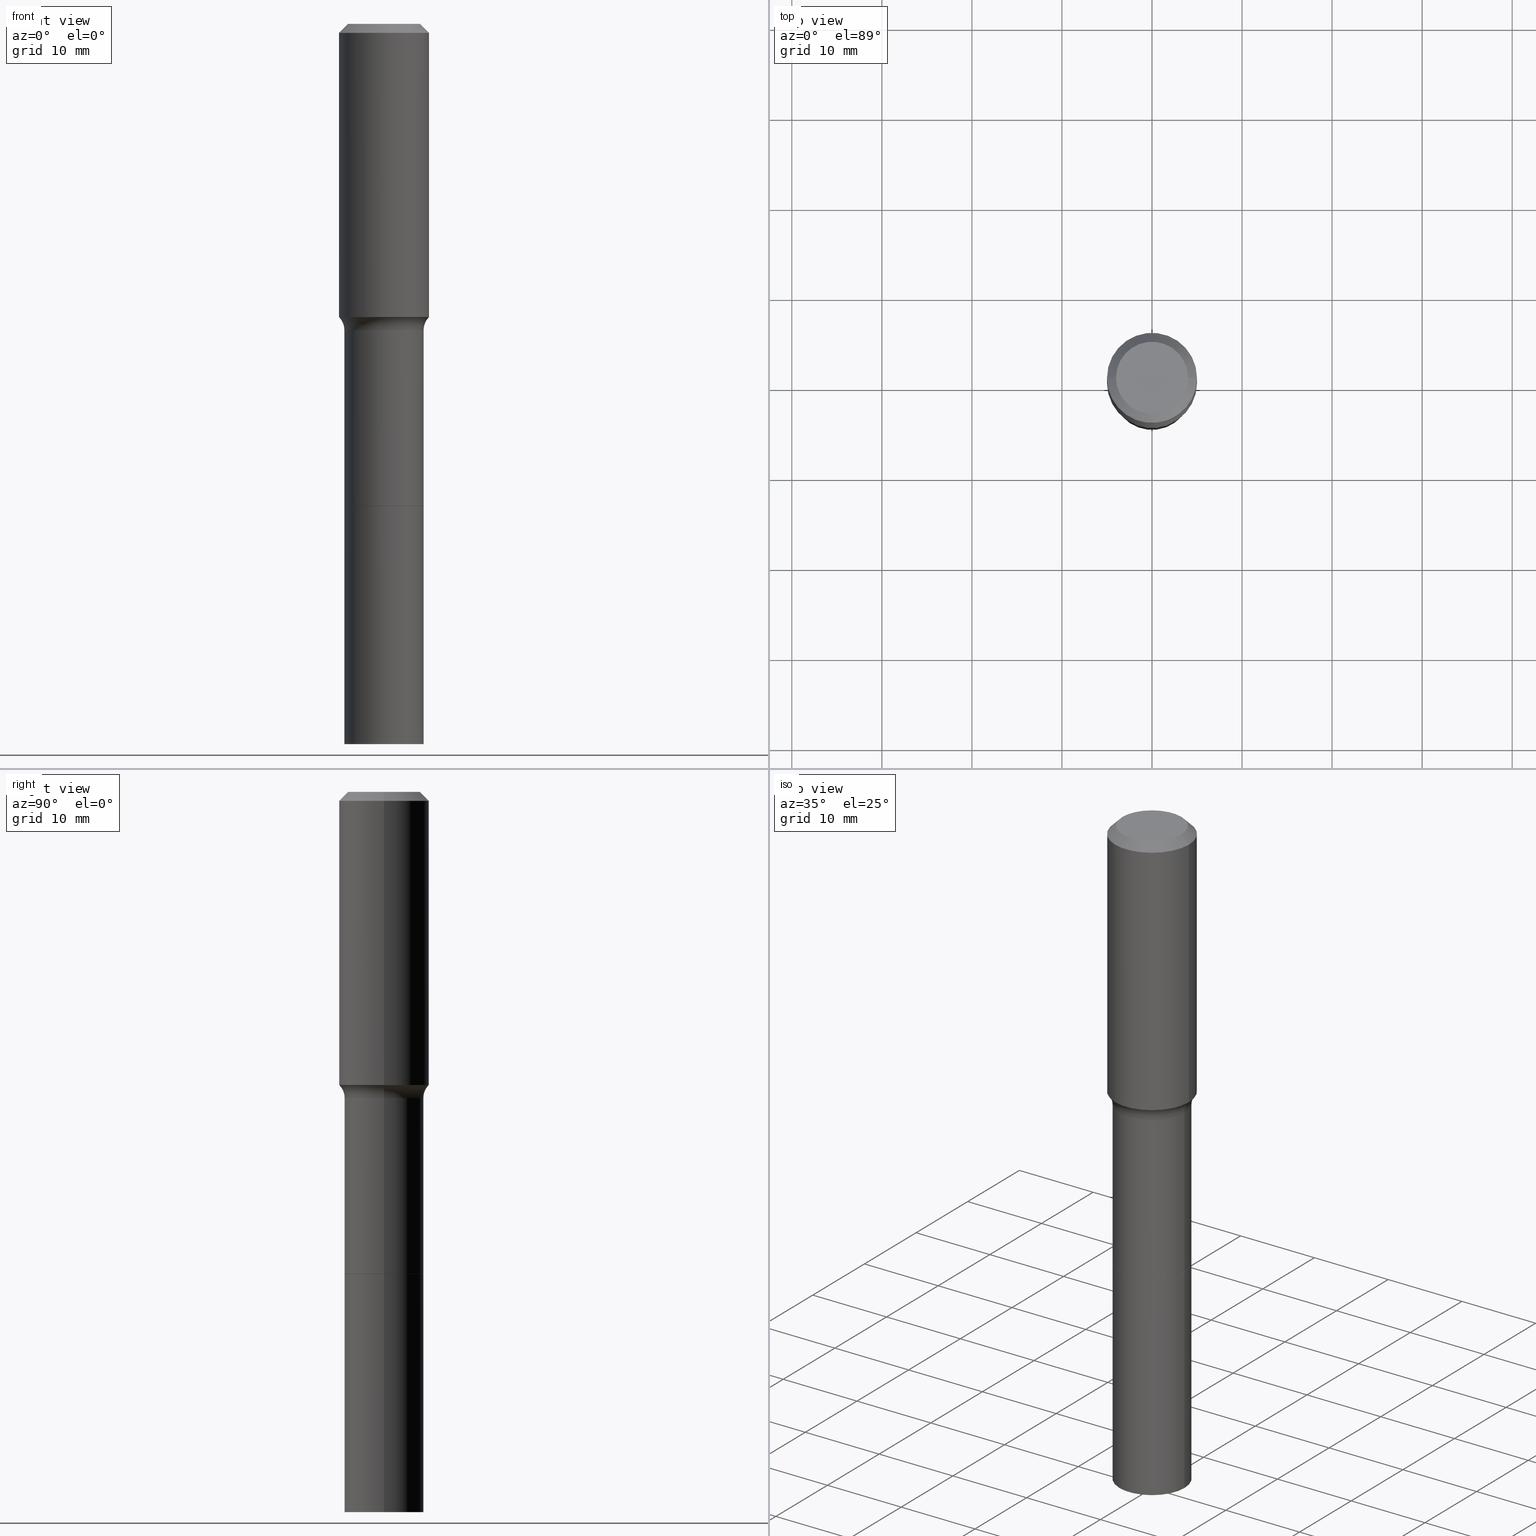
[diagram: canonical four-view strip — front | top / right | iso, engineering-drawing reading convention]
A machine part, canonical four-view strip (front | top / right | iso — engineering-drawing reading convention). The complete STEP part file that produces these views, byte-faithful:
ISO-10303-21;
HEADER;
FILE_DESCRIPTION (( 'STEP AP203' ),
    '1' );
FILE_NAME ('67765.STEP',
    '2025-04-01T15:30:23',
    ( '' ),
    ( '' ),
    'SwSTEP 2.0',
    'SolidWorks 2024',
    '' );
FILE_SCHEMA (( 'CONFIG_CONTROL_DESIGN' ));
ENDSEC;

DATA;
#1 = AXIS2_PLACEMENT_3D ( 'NONE', #448, #405, #164 ) ;
#2 = EDGE_LOOP ( 'NONE', ( #35, #314, #259, #279 ) ) ;
#3 = CARTESIAN_POINT ( 'NONE',  ( 7.702248551960706711E-29, -1.099676962482037231E-14, -3.149600000000000399 ) ) ;
#4 = PRODUCT_DEFINITION ( 'UNKNOWN', '', #490, #422 ) ;
#5 = EDGE_LOOP ( 'NONE', ( #225, #436, #476, #50 ) ) ;
#6 = EDGE_CURVE ( 'NONE', #451, #30, #44, .T. ) ;
#7 = LINE ( 'NONE', #236, #80 ) ;
#8 = AXIS2_PLACEMENT_3D ( 'NONE', #374, #435, #468 ) ;
#9 = ORIENTED_EDGE ( 'NONE', *, *, #290, .F. ) ;
#10 = SECURITY_CLASSIFICATION_LEVEL ( 'unclassified' ) ;
#11 = DIRECTION ( 'NONE',  ( -2.445468806185136597E-29, 3.491481338843145583E-15, 1.000000000000000000 ) ) ;
#12 = DIRECTION ( 'NONE',  ( 1.000000000000000000, -6.982962677686265922E-15, 4.876223630392693006E-29 ) ) ;
#13 = VERTEX_POINT ( 'NONE', #356 ) ;
#14 = CARTESIAN_POINT ( 'NONE',  ( 9.627810689950955906E-31, -1.374596203102556794E-16, -0.03937000000000030059 ) ) ;
#15 = CIRCLE ( 'NONE', #493, 0.1727499999999999869 ) ;
#16 = EDGE_CURVE ( 'NONE', #68, #13, #248, .T. ) ;
#17 = FACE_OUTER_BOUND ( 'NONE', #469, .T. ) ;
#18 = DIRECTION ( 'NONE',  ( -2.445468806185136597E-29, 3.491481338843145583E-15, 1.000000000000000000 ) ) ;
#19 = LINE ( 'NONE', #334, #466 ) ;
#20 = SECURITY_CLASSIFICATION ( '', '', #10 ) ;
#21 = EDGE_CURVE ( 'NONE', #439, #30, #270, .T. ) ;
#22 = CARTESIAN_POINT ( 'NONE',  ( 9.627810689950955906E-31, -1.374596203102556794E-16, -0.03937000000000030059 ) ) ;
#23 = CARTESIAN_POINT ( 'NONE',  ( 3.134551197709125186E-29, -4.475308368182595464E-15, -1.281779260394221964 ) ) ;
#24 = EDGE_LOOP ( 'NONE', ( #9, #276, #269, #117 ) ) ;
#25 = CONICAL_SURFACE ( 'NONE', #311, 0.1727499999999999869, 0.7853981633977896726 ) ;
#26 = PERSON_AND_ORGANIZATION ( #338, #99 ) ;
#27 = DIRECTION ( 'NONE',  ( 1.000000000000000000, -6.982962677686265133E-15, 0.000000000000000000 ) ) ;
#28 = ADVANCED_FACE ( 'NONE', ( #79 ), #407, .T. ) ;
#29 = CARTESIAN_POINT ( 'NONE',  ( 0.1574800000000000089, -1.284169937930321386E-15, 3.855188123724205385E-18 ) ) ;
#30 = VERTEX_POINT ( 'NONE', #361 ) ;
#31 = DIRECTION ( 'NONE',  ( -2.445468806185136597E-29, 3.491481338843145583E-15, 1.000000000000000000 ) ) ;
#32 = ORIENTED_EDGE ( 'NONE', *, *, #40, .F. ) ;
#33 = CALENDAR_DATE ( 2025, 1, 4 ) ;
#34 = CARTESIAN_POINT ( 'NONE',  ( 3.140080086727243582E-29, -4.483202156393049043E-15, -1.284040131195000489 ) ) ;
#35 = ORIENTED_EDGE ( 'NONE', *, *, #257, .T. ) ;
#36 = APPLICATION_CONTEXT ( 'configuration controlled 3d designs of mechanical parts and assemblies' ) ;
#37 = ADVANCED_FACE ( 'NONE', ( #446 ), #125, .T. ) ;
#38 = DIRECTION ( 'NONE',  ( -2.445468806185136597E-29, 3.491481338843145583E-15, 1.000000000000000000 ) ) ;
#39 = ORIENTED_EDGE ( 'NONE', *, *, #126, .F. ) ;
#40 = EDGE_CURVE ( 'NONE', #220, #228, #175, .T. ) ;
#41 = ORIENTED_EDGE ( 'NONE', *, *, #271, .T. ) ;
#42 = CALENDAR_DATE ( 2025, 1, 4 ) ;
#43 = ADVANCED_BREP_SHAPE_REPRESENTATION ( '67765', ( #66, #232, #306 ), #189 ) ;
#44 = CIRCLE ( 'NONE', #323, 0.1968500000000000527 ) ;
#45 = CONICAL_SURFACE ( 'NONE', #452, 0.1947417038704662429, 0.7504915783575177857 ) ;
#46 = EDGE_LOOP ( 'NONE', ( #390, #426, #222, #395 ) ) ;
#47 = CARTESIAN_POINT ( 'NONE',  ( -0.1968500000000000527, 1.237136582792286422E-15, -0.03937000000000030059 ) ) ;
#48 = CARTESIAN_POINT ( 'NONE',  ( -0.1732500000000001816, -7.944946816909296255E-15, -3.149600000000000399 ) ) ;
#49 = AXIS2_PLACEMENT_3D ( 'NONE', #14, #286, #58 ) ;
#50 = ORIENTED_EDGE ( 'NONE', *, *, #187, .F. ) ;
#51 = EDGE_CURVE ( 'NONE', #77, #307, #85, .T. ) ;
#52 = ORIENTED_EDGE ( 'NONE', *, *, #375, .F. ) ;
#53 = DIRECTION ( 'NONE',  ( 1.000000000000000000, -6.982962677686269866E-15, 0.000000000000000000 ) ) ;
#54 = CYLINDRICAL_SURFACE ( 'NONE', #408, 0.1732499999999999318 ) ;
#55 = DIRECTION ( 'NONE',  ( -2.445468806185136597E-29, 3.491481338843145583E-15, 1.000000000000000000 ) ) ;
#56 = AXIS2_PLACEMENT_3D ( 'NONE', #142, #224, #480 ) ;
#57 = FACE_OUTER_BOUND ( 'NONE', #472, .T. ) ;
#58 = DIRECTION ( 'NONE',  ( 1.000000000000000000, -6.982962677686266711E-15, 0.000000000000000000 ) ) ;
#59 = APPLICATION_CONTEXT ( 'configuration controlled 3d designs of mechanical parts and assemblies' ) ;
#60 = FACE_OUTER_BOUND ( 'NONE', #24, .T. ) ;
#61 = DIRECTION ( 'NONE',  ( 1.000000000000000000, -6.982962677686265922E-15, 4.876176775795935793E-29 ) ) ;
#62 = CARTESIAN_POINT ( 'NONE',  ( 0.1732500000000001816, -1.220656790872951925E-14, -3.149600000000000399 ) ) ;
#63 = AXIS2_PLACEMENT_3D ( 'NONE', #328, #414, #368 ) ;
#64 = AXIS2_PLACEMENT_3D ( 'NONE', #67, #38, #105 ) ;
#65 = DIRECTION ( 'NONE',  ( 1.000000000000000000, 0.000000000000000000, 0.000000000000000000 ) ) ;
#66 = MANIFOLD_SOLID_BREP ( 'Body-Move/Copy2[1]', #201 ) ;
#67 = CARTESIAN_POINT ( 'NONE',  ( 0.000000000000000000, 0.000000000000000000, 0.000000000000000000 ) ) ;
#68 = VERTEX_POINT ( 'NONE', #81 ) ;
#69 = LINE ( 'NONE', #430, #467 ) ;
#70 = VERTEX_POINT ( 'NONE', #237 ) ;
#71 = CARTESIAN_POINT ( 'NONE',  ( -0.1968500000000001915, -3.076604992838836493E-15, -1.281779260394221964 ) ) ;
#72 = ORIENTED_EDGE ( 'NONE', *, *, #103, .F. ) ;
#73 = CARTESIAN_POINT ( 'NONE',  ( 0.1947417038704662429, -5.843076206309545560E-15, -1.284040131195000489 ) ) ;
#74 = ORIENTED_EDGE ( 'NONE', *, *, #459, .T. ) ;
#75 = APPROVAL_STATUS ( 'not_yet_approved' ) ;
#76 = DIRECTION ( 'NONE',  ( 1.000000000000000000, -6.982962677686266711E-15, 4.883557194083112340E-29 ) ) ;
#77 = VERTEX_POINT ( 'NONE', #48 ) ;
#78 = PERSON_AND_ORGANIZATION ( #338, #99 ) ;
#79 = FACE_OUTER_BOUND ( 'NONE', #2, .T. ) ;
#80 = VECTOR ( 'NONE', #317, 39.37007874015748143 ) ;
#81 = CARTESIAN_POINT ( 'NONE',  ( -0.1947417038704662429, -3.099479126046004502E-15, -1.284040131195000489 ) ) ;
#82 = ADVANCED_FACE ( 'NONE', ( #277 ), #379, .T. ) ;
#83 = APPROVAL_DATE_TIME ( #518, #285 ) ;
#84 = DIRECTION ( 'NONE',  ( 1.000000000000000000, -6.982962677686266711E-15, 0.000000000000000000 ) ) ;
#85 = LINE ( 'NONE', #238, #478 ) ;
#86 = SHAPE_DEFINITION_REPRESENTATION ( #319, #43 ) ;
#87 = CC_DESIGN_APPROVAL ( #263, ( #490 ) ) ;
#88 = EDGE_LOOP ( 'NONE', ( #313, #340 ) ) ;
#89 = EDGE_LOOP ( 'NONE', ( #180, #101, #506, #489 ) ) ;
#90 = PLANE ( 'NONE',  #154 ) ;
#91 = CARTESIAN_POINT ( 'NONE',  ( -0.1574800000000000089, 1.168406772637159815E-15, 3.855188123707939751E-18 ) ) ;
#92 = DIRECTION ( 'NONE',  ( 1.000000000000000000, -6.982962677686266711E-15, 0.000000000000000000 ) ) ;
#93 = EDGE_CURVE ( 'NONE', #77, #149, #281, .T. ) ;
#94 = DIRECTION ( 'NONE',  ( 1.000000000000000000, -6.982962677686266711E-15, 0.000000000000000000 ) ) ;
#95 = DIRECTION ( 'NONE',  ( -2.445468806185136877E-29, 3.491481338843145188E-15, 1.000000000000000000 ) ) ;
#96 = ADVANCED_FACE ( 'NONE', ( #292 ), #136, .T. ) ;
#97 = DIRECTION ( 'NONE',  ( -2.445468806185136597E-29, 3.491481338843145583E-15, 1.000000000000000000 ) ) ;
#98 = LINE ( 'NONE', #330, #316 ) ;
#99 = ORGANIZATION ( 'UNSPECIFIED', 'UNSPECIFIED', '' ) ;
#100 = CARTESIAN_POINT ( 'NONE',  ( -0.1727499999999999869, -6.125042785207288310E-15, -2.106600000000000250 ) ) ;
#101 = ORIENTED_EDGE ( 'NONE', *, *, #399, .F. ) ;
#102 = AXIS2_PLACEMENT_3D ( 'NONE', #3, #159, #119 ) ;
#103 = EDGE_CURVE ( 'NONE', #68, #205, #19, .T. ) ;
#104 = CIRCLE ( 'NONE', #120, 0.1732499999999999596 ) ;
#105 = DIRECTION ( 'NONE',  ( 1.000000000000000000, -6.982962677686267499E-15, 4.876176775795935793E-29 ) ) ;
#106 = CC_DESIGN_DATE_AND_TIME_ASSIGNMENT ( #514, #423, ( #4 ) ) ;
#107 = ORIENTED_EDGE ( 'NONE', *, *, #241, .T. ) ;
#108 = DIRECTION ( 'NONE',  ( -2.445468806185136597E-29, 3.491481338843145583E-15, 1.000000000000000000 ) ) ;
#109 = EDGE_LOOP ( 'NONE', ( #199, #336, #194, #115 ) ) ;
#110 = PERSON_AND_ORGANIZATION ( #338, #99 ) ;
#111 = CARTESIAN_POINT ( 'NONE',  ( -0.1732499999999999873, -7.944946816909297833E-15, -2.106600000000000250 ) ) ;
#112 = EDGE_LOOP ( 'NONE', ( #347, #127, #383, #156 ) ) ;
#113 = TOROIDAL_SURFACE ( 'NONE', #398, 0.2532499999999998641, 0.07999999999999994615 ) ;
#114 = DIRECTION ( 'NONE',  ( -2.445468806185136597E-29, 3.491481338843145583E-15, 1.000000000000000000 ) ) ;
#115 = ORIENTED_EDGE ( 'NONE', *, *, #481, .T. ) ;
#116 = ADVANCED_FACE ( 'NONE', ( #172 ), #54, .T. ) ;
#117 = ORIENTED_EDGE ( 'NONE', *, *, #21, .F. ) ;
#118 = EDGE_CURVE ( 'NONE', #205, #30, #502, .T. ) ;
#119 = DIRECTION ( 'NONE',  ( -1.000000000000000000, 6.982962677686265922E-15, -4.876176775795935793E-29 ) ) ;
#120 = AXIS2_PLACEMENT_3D ( 'NONE', #305, #296, #475 ) ;
#121 = VECTOR ( 'NONE', #210, 39.37007874015748143 ) ;
#122 = CARTESIAN_POINT ( 'NONE',  ( 0.2532499999999998641, -6.442132218299481750E-15, -1.338600000000000234 ) ) ;
#123 = COORDINATED_UNIVERSAL_TIME_OFFSET ( 5, 0, .BEHIND. ) ;
#124 = EDGE_CURVE ( 'NONE', #149, #77, #169, .T. ) ;
#125 = PLANE ( 'NONE',  #102 ) ;
#126 = EDGE_CURVE ( 'NONE', #205, #410, #129, .T. ) ;
#127 = ORIENTED_EDGE ( 'NONE', *, *, #375, .T. ) ;
#128 = CARTESIAN_POINT ( 'NONE',  ( 0.1968500000000000527, -1.512055823412797583E-15, -0.03937000000000030059 ) ) ;
#129 = CIRCLE ( 'NONE', #424, 0.1968500000000001915 ) ;
#130 = DIRECTION ( 'NONE',  ( -2.445468806185136597E-29, 3.491481338843145583E-15, 1.000000000000000000 ) ) ;
#131 = CARTESIAN_POINT ( 'NONE',  ( 0.1727499999999999869, -8.561461390977273068E-15, -2.106600000000000250 ) ) ;
#132 = DIRECTION ( 'NONE',  ( -2.445468806185136877E-29, 3.491481338843145188E-15, 1.000000000000000000 ) ) ;
#133 = DIRECTION ( 'NONE',  ( 1.000000000000000000, -6.982962677686267499E-15, 4.876176775795935793E-29 ) ) ;
#134 = CIRCLE ( 'NONE', #202, 0.1727499999999999869 ) ;
#135 = EDGE_CURVE ( 'NONE', #242, #451, #456, .T. ) ;
#136 = CYLINDRICAL_SURFACE ( 'NONE', #370, 0.1968500000000001082 ) ;
#137 = DATE_AND_TIME ( #215, #404 ) ;
#138 = EDGE_CURVE ( 'NONE', #191, #13, #98, .T. ) ;
#139 = CARTESIAN_POINT ( 'NONE',  ( 3.273504543959424474E-29, -4.673696920175435525E-15, -1.338600000000000234 ) ) ;
#140 = CC_DESIGN_APPROVAL ( #285, ( #20 ) ) ;
#141 = DATE_AND_TIME ( #33, #287 ) ;
#142 = CARTESIAN_POINT ( 'NONE',  ( 5.151624587109609366E-29, -7.355154588406972292E-15, -2.106600000000000250 ) ) ;
#143 = ORIENTED_EDGE ( 'NONE', *, *, #481, .F. ) ;
#144 = CIRCLE ( 'NONE', #501, 0.1732499999999999873 ) ;
#145 = DIRECTION ( 'NONE',  ( 1.000000000000000000, -6.982962677686265133E-15, 0.000000000000000000 ) ) ;
#146 = ORIENTED_EDGE ( 'NONE', *, *, #197, .T. ) ;
#147 = CARTESIAN_POINT ( 'NONE',  ( 0.000000000000000000, 0.000000000000000000, 0.000000000000000000 ) ) ;
#148 = DIRECTION ( 'NONE',  ( -1.000000000000000000, 6.982962677686265922E-15, -4.876176775795935793E-29 ) ) ;
#149 = VERTEX_POINT ( 'NONE', #62 ) ;
#150 = FACE_OUTER_BOUND ( 'NONE', #160, .T. ) ;
#151 = ORIENTED_EDGE ( 'NONE', *, *, #399, .T. ) ;
#152 = CC_DESIGN_PERSON_AND_ORGANIZATION_ASSIGNMENT ( #78, #231, ( #490 ) ) ;
#153 = AXIS2_PLACEMENT_3D ( 'NONE', #449, #406, #365 ) ;
#154 = AXIS2_PLACEMENT_3D ( 'NONE', #413, #250, #61 ) ;
#155 = EDGE_CURVE ( 'NONE', #410, #205, #177, .T. ) ;
#156 = ORIENTED_EDGE ( 'NONE', *, *, #411, .F. ) ;
#157 = PERSON_AND_ORGANIZATION ( #338, #99 ) ;
#158 = DIRECTION ( 'NONE',  ( -2.445468806185136597E-29, 3.491481338843145583E-15, 1.000000000000000000 ) ) ;
#159 = DIRECTION ( 'NONE',  ( 2.438088387897960049E-29, -3.491481338843145188E-15, -1.000000000000000000 ) ) ;
#160 = EDGE_LOOP ( 'NONE', ( #151, #344 ) ) ;
#161 = CONICAL_SURFACE ( 'NONE', #1, 0.1968500000000000527, 0.7853981633974450594 ) ;
#162 = ORIENTED_EDGE ( 'NONE', *, *, #378, .T. ) ;
#163 = DATE_TIME_ROLE ( 'classification_date' ) ;
#164 = DIRECTION ( 'NONE',  ( -1.000000000000000000, 6.982962677686266711E-15, 0.000000000000000000 ) ) ;
#165 = ORIENTED_EDGE ( 'NONE', *, *, #155, .T. ) ;
#166 = DIRECTION ( 'NONE',  ( 1.000000000000000000, -6.982962677686266711E-15, 4.876176775795935793E-29 ) ) ;
#167 = FACE_OUTER_BOUND ( 'NONE', #109, .T. ) ;
#168 = CARTESIAN_POINT ( 'NONE',  ( 0.1732500000000000984, -8.564952872316117653E-15, -2.106600000000000250 ) ) ;
#169 = CIRCLE ( 'NONE', #324, 0.1732500000000001816 ) ;
#170 = DIRECTION ( 'NONE',  ( 1.000000000000000000, -6.982962677686266711E-15, 4.883557194083112340E-29 ) ) ;
#171 = CYLINDRICAL_SURFACE ( 'NONE', #380, 0.1732500000000000984 ) ;
#172 = FACE_OUTER_BOUND ( 'NONE', #350, .T. ) ;
#173 = ADVANCED_FACE ( 'NONE', ( #246 ), #288, .T. ) ;
#174 = ADVANCED_FACE ( 'NONE', ( #167 ), #444, .F. ) ;
#175 = CIRCLE ( 'NONE', #396, 0.07999999999999993228 ) ;
#176 = DIRECTION ( 'NONE',  ( -2.445468806185136597E-29, 3.491481338843145583E-15, 1.000000000000000000 ) ) ;
#177 = CIRCLE ( 'NONE', #267, 0.1968500000000001915 ) ;
#178 = ADVANCED_FACE ( 'NONE', ( #500 ), #90, .F. ) ;
#179 = LINE ( 'NONE', #505, #188 ) ;
#180 = ORIENTED_EDGE ( 'NONE', *, *, #135, .F. ) ;
#181 = APPLICATION_PROTOCOL_DEFINITION ( 'international standard', 'config_control_design', 1994, #59 ) ;
#182 = FACE_OUTER_BOUND ( 'NONE', #431, .T. ) ;
#183 = VERTEX_POINT ( 'NONE', #206 ) ;
#184 = EDGE_CURVE ( 'NONE', #30, #451, #239, .T. ) ;
#185 = DIRECTION ( 'NONE',  ( 1.000000000000000000, -6.982962677686267499E-15, 0.000000000000000000 ) ) ;
#186 = ORIENTED_EDGE ( 'NONE', *, *, #184, .F. ) ;
#187 = EDGE_CURVE ( 'NONE', #183, #510, #495, .T. ) ;
#188 = VECTOR ( 'NONE', #337, 39.37007874015748143 ) ;
#189 =( GEOMETRIC_REPRESENTATION_CONTEXT ( 3 ) GLOBAL_UNCERTAINTY_ASSIGNED_CONTEXT ( ( #289 ) ) GLOBAL_UNIT_ASSIGNED_CONTEXT ( ( #245, #499, #458 ) ) REPRESENTATION_CONTEXT ( 'NONE', 'WORKASPACE' ) );
#190 = CARTESIAN_POINT ( 'NONE',  ( -9.427742298522567634E-47, 1.346031739168368355E-32, 3.855188123715870730E-18 ) ) ;
#191 = VERTEX_POINT ( 'NONE', #372 ) ;
#192 = DIRECTION ( 'NONE',  ( 1.000000000000000000, -6.982962677686269866E-15, 0.000000000000000000 ) ) ;
#193 = ADVANCED_FACE ( 'NONE', ( #17 ), #171, .T. ) ;
#194 = ORIENTED_EDGE ( 'NONE', *, *, #40, .T. ) ;
#195 = ORIENTED_EDGE ( 'NONE', *, *, #118, .F. ) ;
#196 = CIRCLE ( 'NONE', #255, 0.1947417038704662429 ) ;
#197 = EDGE_CURVE ( 'NONE', #68, #220, #507, .T. ) ;
#198 = ORIENTED_EDGE ( 'NONE', *, *, #118, .T. ) ;
#199 = ORIENTED_EDGE ( 'NONE', *, *, #16, .F. ) ;
#200 = ORIENTED_EDGE ( 'NONE', *, *, #360, .T. ) ;
#201 = CLOSED_SHELL ( 'NONE', ( #193, #37, #173, #280 ) ) ;
#202 = AXIS2_PLACEMENT_3D ( 'NONE', #385, #108, #308 ) ;
#203 = CARTESIAN_POINT ( 'NONE',  ( -9.427742298522567634E-47, 1.346031739168368355E-32, 3.855188123715870730E-18 ) ) ;
#204 = DIRECTION ( 'NONE',  ( 1.000000000000000000, -6.982962677686265133E-15, 0.000000000000000000 ) ) ;
#205 = VERTEX_POINT ( 'NONE', #71 ) ;
#206 = CARTESIAN_POINT ( 'NONE',  ( 0.1727499999999999869, -8.561461390977273068E-15, -2.106600000000000250 ) ) ;
#207 = VECTOR ( 'NONE', #95, 39.37007874015748143 ) ;
#208 = CIRCLE ( 'NONE', #249, 0.1732499999999998763 ) ;
#209 = CARTESIAN_POINT ( 'NONE',  ( 3.273504543959424474E-29, -4.673696920175435525E-15, -1.338600000000000234 ) ) ;
#210 = DIRECTION ( 'NONE',  ( -2.445468806185136877E-29, 3.491481338843145188E-15, 1.000000000000000000 ) ) ;
#211 = DIRECTION ( 'NONE',  ( -2.445468806185136597E-29, 3.491481338843145583E-15, 1.000000000000000000 ) ) ;
#212 = ADVANCED_FACE ( 'NONE', ( #150 ), #346, .F. ) ;
#213 = DIRECTION ( 'NONE',  ( -2.445468806185136877E-29, 3.491481338843145188E-15, 1.000000000000000000 ) ) ;
#214 = DIRECTION ( 'NONE',  ( -0.6819983600624663911, 7.399397606724163514E-15, 0.7313537016192004359 ) ) ;
#215 = CALENDAR_DATE ( 2025, 1, 4 ) ;
#216 = CARTESIAN_POINT ( 'NONE',  ( 5.151624587109609366E-29, -7.355154588406972292E-15, -2.106600000000000250 ) ) ;
#217 = AXIS2_PLACEMENT_3D ( 'NONE', #190, #114, #268 ) ;
#218 = APPROVAL_DATE_TIME ( #137, #401 ) ;
#219 = FACE_OUTER_BOUND ( 'NONE', #112, .T. ) ;
#220 = VERTEX_POINT ( 'NONE', #73 ) ;
#221 = CARTESIAN_POINT ( 'NONE',  ( 5.151624587109609366E-29, -7.355154588406972292E-15, -2.106600000000000250 ) ) ;
#222 = ORIENTED_EDGE ( 'NONE', *, *, #443, .T. ) ;
#223 = COORDINATED_UNIVERSAL_TIME_OFFSET ( 5, 0, .BEHIND. ) ;
#224 = DIRECTION ( 'NONE',  ( 2.438088387897960049E-29, -3.491481338843145188E-15, -1.000000000000000000 ) ) ;
#225 = ORIENTED_EDGE ( 'NONE', *, *, #247, .T. ) ;
#226 = AXIS2_PLACEMENT_3D ( 'NONE', #418, #327, #94 ) ;
#227 = DIRECTION ( 'NONE',  ( -2.445468806185136597E-29, 3.491481338843145583E-15, 1.000000000000000000 ) ) ;
#228 = VERTEX_POINT ( 'NONE', #504 ) ;
#229 = CYLINDRICAL_SURFACE ( 'NONE', #64, 0.1732499999999999318 ) ;
#230 = ORIENTED_EDGE ( 'NONE', *, *, #241, .F. ) ;
#231 = PERSON_AND_ORGANIZATION_ROLE ( 'design_supplier' ) ;
#232 = MANIFOLD_SOLID_BREP ( 'Body-Move/Copy2[2]', #335 ) ;
#233 = DIRECTION ( 'NONE',  ( -2.445468806185136597E-29, 3.491481338843145583E-15, 1.000000000000000000 ) ) ;
#234 = AXIS2_PLACEMENT_3D ( 'NONE', #216, #55, #381 ) ;
#235 = ORIENTED_EDGE ( 'NONE', *, *, #138, .T. ) ;
#236 = CARTESIAN_POINT ( 'NONE',  ( 0.1968500000000001082, -1.374596203102542397E-15, 9.598753983154305062E-30 ) ) ;
#237 = CARTESIAN_POINT ( 'NONE',  ( 0.1732499999999999873, -8.564952872316117653E-15, -2.106600000000000250 ) ) ;
#238 = CARTESIAN_POINT ( 'NONE',  ( -0.1732500000000000984, -6.124139298702597035E-15, -2.106600000000000250 ) ) ;
#239 = CIRCLE ( 'NONE', #49, 0.1968500000000000527 ) ;
#240 = DIRECTION ( 'NONE',  ( -2.445468806185136597E-29, 3.491481338843145583E-15, 1.000000000000000000 ) ) ;
#241 = EDGE_CURVE ( 'NONE', #13, #228, #299, .T. ) ;
#242 = VERTEX_POINT ( 'NONE', #29 ) ;
#243 = CARTESIAN_POINT ( 'NONE',  ( 7.702248551960706711E-29, -1.099676962482037231E-14, -3.149600000000000399 ) ) ;
#244 = LOCAL_TIME ( 11, 30, 23.00000000000000000, #364 ) ;
#245 =( CONVERSION_BASED_UNIT ( 'INCH', #325 ) LENGTH_UNIT ( ) NAMED_UNIT ( #371 ) );
#246 = FACE_OUTER_BOUND ( 'NONE', #46, .T. ) ;
#247 = EDGE_CURVE ( 'NONE', #183, #310, #134, .T. ) ;
#248 = CIRCLE ( 'NONE', #315, 0.07999999999999993228 ) ;
#249 = AXIS2_PLACEMENT_3D ( 'NONE', #373, #18, #53 ) ;
#250 = DIRECTION ( 'NONE',  ( -2.438088387897960049E-29, 3.491481338843145188E-15, 1.000000000000000000 ) ) ;
#251 = APPLICATION_PROTOCOL_DEFINITION ( 'international standard', 'config_control_design', 1994, #36 ) ;
#252 = LOCAL_TIME ( 11, 30, 23.00000000000000000, #223 ) ;
#253 = CARTESIAN_POINT ( 'NONE',  ( 0.000000000000000000, 0.000000000000000000, 0.000000000000000000 ) ) ;
#254 = DIRECTION ( 'NONE',  ( 1.000000000000000000, -6.982962677686266711E-15, 0.000000000000000000 ) ) ;
#255 = AXIS2_PLACEMENT_3D ( 'NONE', #348, #298, #185 ) ;
#256 = ORIENTED_EDGE ( 'NONE', *, *, #6, .F. ) ;
#257 = EDGE_CURVE ( 'NONE', #220, #68, #196, .T. ) ;
#258 = DIRECTION ( 'NONE',  ( -2.445468806185136597E-29, 3.491481338843145583E-15, 1.000000000000000000 ) ) ;
#259 = ORIENTED_EDGE ( 'NONE', *, *, #155, .F. ) ;
#260 = ADVANCED_FACE ( 'NONE', ( #471 ), #45, .T. ) ;
#261 = FACE_OUTER_BOUND ( 'NONE', #262, .T. ) ;
#262 = EDGE_LOOP ( 'NONE', ( #200, #41 ) ) ;
#263 = APPROVAL ( #470, 'UNSPECIFIED' ) ;
#264 = PERSON_AND_ORGANIZATION ( #338, #99 ) ;
#265 = DIRECTION ( 'NONE',  ( -2.445468806185136597E-29, 3.491481338843145583E-15, 1.000000000000000000 ) ) ;
#266 = ORIENTED_EDGE ( 'NONE', *, *, #124, .T. ) ;
#267 = AXIS2_PLACEMENT_3D ( 'NONE', #460, #97, #92 ) ;
#268 = DIRECTION ( 'NONE',  ( 1.000000000000000000, -6.982962677686265922E-15, 4.876223630392693006E-29 ) ) ;
#269 = ORIENTED_EDGE ( 'NONE', *, *, #6, .T. ) ;
#270 = LINE ( 'NONE', #47, #309 ) ;
#271 = EDGE_CURVE ( 'NONE', #307, #70, #144, .T. ) ;
#272 = CC_DESIGN_PERSON_AND_ORGANIZATION_ASSIGNMENT ( #295, #463, ( #4 ) ) ;
#273 = DIRECTION ( 'NONE',  ( -6.982962677686266711E-15, -1.000000000000000000, 3.491481338843145583E-15 ) ) ;
#274 = VECTOR ( 'NONE', #492, 39.37007874015748143 ) ;
#275 = CONICAL_SURFACE ( 'NONE', #416, 0.1968500000000000527, 0.7853981633974450594 ) ;
#276 = ORIENTED_EDGE ( 'NONE', *, *, #135, .T. ) ;
#277 = FACE_OUTER_BOUND ( 'NONE', #5, .T. ) ;
#278 = LOCAL_TIME ( 11, 30, 23.00000000000000000, #123 ) ;
#279 = ORIENTED_EDGE ( 'NONE', *, *, #363, .F. ) ;
#280 = ADVANCED_FACE ( 'NONE', ( #261 ), #343, .F. ) ;
#281 = CIRCLE ( 'NONE', #63, 0.1732500000000001816 ) ;
#282 = VECTOR ( 'NONE', #454, 39.37007874015748143 ) ;
#283 = DIRECTION ( 'NONE',  ( -2.445468806185136597E-29, 3.491481338843145583E-15, 1.000000000000000000 ) ) ;
#284 = EDGE_CURVE ( 'NONE', #310, #191, #69, .T. ) ;
#285 = APPROVAL ( #75, 'UNSPECIFIED' ) ;
#286 = DIRECTION ( 'NONE',  ( -2.445468806185136597E-29, 3.491481338843145583E-15, 1.000000000000000000 ) ) ;
#287 = LOCAL_TIME ( 11, 30, 23.00000000000000000, #387 ) ;
#288 = CYLINDRICAL_SURFACE ( 'NONE', #234, 0.1732500000000000984 ) ;
#289 = UNCERTAINTY_MEASURE_WITH_UNIT (LENGTH_MEASURE( 1.000000000000000082E-05 ), #245, 'distance_accuracy_value', 'NONE');
#290 = EDGE_CURVE ( 'NONE', #242, #439, #333, .T. ) ;
#291 = AXIS2_PLACEMENT_3D ( 'NONE', #464, #302, #148 ) ;
#292 = FACE_OUTER_BOUND ( 'NONE', #516, .T. ) ;
#293 = DIRECTION ( 'NONE',  ( -2.445468806185136597E-29, 3.491481338843145583E-15, 1.000000000000000000 ) ) ;
#294 = ORIENTED_EDGE ( 'NONE', *, *, #459, .F. ) ;
#295 = PERSON_AND_ORGANIZATION ( #338, #99 ) ;
#296 = DIRECTION ( 'NONE',  ( -2.445468806185136597E-29, 3.491481338843145583E-15, 1.000000000000000000 ) ) ;
#297 = EDGE_CURVE ( 'NONE', #510, #191, #104, .T. ) ;
#298 = DIRECTION ( 'NONE',  ( -2.445468806185136597E-29, 3.491481338843145583E-15, 1.000000000000000000 ) ) ;
#299 = CIRCLE ( 'NONE', #434, 0.1732499999999998763 ) ;
#300 = ORIENTED_EDGE ( 'NONE', *, *, #443, .F. ) ;
#301 = COORDINATED_UNIVERSAL_TIME_OFFSET ( 5, 0, .BEHIND. ) ;
#302 = DIRECTION ( 'NONE',  ( 2.438088387897960049E-29, -3.491481338843145188E-15, -1.000000000000000000 ) ) ;
#303 = ORIENTED_EDGE ( 'NONE', *, *, #247, .F. ) ;
#304 = DIRECTION ( 'NONE',  ( 0.000000000000000000, 0.000000000000000000, 1.000000000000000000 ) ) ;
#305 = CARTESIAN_POINT ( 'NONE',  ( 5.150401852706517686E-29, -7.353408847737550000E-15, -2.106100000000000527 ) ) ;
#306 = AXIS2_PLACEMENT_3D ( 'NONE', #147, #304, #65 ) ;
#307 = VERTEX_POINT ( 'NONE', #111 ) ;
#308 = DIRECTION ( 'NONE',  ( 1.000000000000000000, -6.982962677686266711E-15, 0.000000000000000000 ) ) ;
#309 = VECTOR ( 'NONE', #441, 39.37007874015748143 ) ;
#310 = VERTEX_POINT ( 'NONE', #100 ) ;
#311 = AXIS2_PLACEMENT_3D ( 'NONE', #438, #265, #254 ) ;
#312 = DIRECTION ( 'NONE',  ( -1.000000000000000000, 7.105427357601005014E-15, 0.000000000000000000 ) ) ;
#313 = ORIENTED_EDGE ( 'NONE', *, *, #124, .F. ) ;
#314 = ORIENTED_EDGE ( 'NONE', *, *, #103, .T. ) ;
#315 = AXIS2_PLACEMENT_3D ( 'NONE', #320, #483, #312 ) ;
#316 = VECTOR ( 'NONE', #132, 39.37007874015748143 ) ;
#317 = DIRECTION ( 'NONE',  ( -2.445468806185136877E-29, 3.491481338843145188E-15, 1.000000000000000000 ) ) ;
#318 = EDGE_LOOP ( 'NONE', ( #303, #52 ) ) ;
#319 = PRODUCT_DEFINITION_SHAPE ( 'NONE', 'NONE',  #4 ) ;
#320 = CARTESIAN_POINT ( 'NONE',  ( -0.2532499999999998641, -2.874247441862983165E-15, -1.338600000000000234 ) ) ;
#321 = CARTESIAN_POINT ( 'NONE',  ( 0.000000000000000000, 0.000000000000000000, 0.000000000000000000 ) ) ;
#322 = CARTESIAN_POINT ( 'NONE',  ( 0.000000000000000000, 0.000000000000000000, 0.000000000000000000 ) ) ;
#323 = AXIS2_PLACEMENT_3D ( 'NONE', #488, #11, #403 ) ;
#324 = AXIS2_PLACEMENT_3D ( 'NONE', #243, #293, #497 ) ;
#325 = LENGTH_MEASURE_WITH_UNIT ( LENGTH_MEASURE( 0.02539999999999999897 ), #332 );
#326 = CARTESIAN_POINT ( 'NONE',  ( -0.1968500000000001082, 1.398703375343757985E-15, -9.682923725166787881E-30 ) ) ;
#327 = DIRECTION ( 'NONE',  ( -2.445468806185136597E-29, 3.491481338843145583E-15, 1.000000000000000000 ) ) ;
#328 = CARTESIAN_POINT ( 'NONE',  ( 7.702248551960706711E-29, -1.099676962482037231E-14, -3.149600000000000399 ) ) ;
#329 = CARTESIAN_POINT ( 'NONE',  ( 0.1732499999999999596, -8.563207131646695360E-15, -2.106100000000000527 ) ) ;
#330 = CARTESIAN_POINT ( 'NONE',  ( -0.1732499999999999318, 1.231015289704373088E-15, -8.522055043866620619E-30 ) ) ;
#331 = AXIS2_PLACEMENT_3D ( 'NONE', #485, #233, #397 ) ;
#332 =( LENGTH_UNIT ( ) NAMED_UNIT ( * ) SI_UNIT ( $, .METRE. ) );
#333 = CIRCLE ( 'NONE', #217, 0.1574800000000000089 ) ;
#334 = CARTESIAN_POINT ( 'NONE',  ( -0.1947417038704662429, -3.099479126046004896E-15, -1.284040131195000489 ) ) ;
#335 = CLOSED_SHELL ( 'NONE', ( #82, #517, #96, #28, #355, #357, #116, #174, #260, #433, #391, #212, #178, #351 ) ) ;
#336 = ORIENTED_EDGE ( 'NONE', *, *, #257, .F. ) ;
#337 = DIRECTION ( 'NONE',  ( 0.6819983600624663911, -2.208861293262146453E-15, 0.7313537016192004359 ) ) ;
#338 = PERSON ( 'UNSPECIFIED', 'UNSPECIFIED', 'UNSPECIFIED', ('UNSPECIFIED'), ('UNSPECIFIED'), ('UNSPECIFIED') ) ;
#339 = CARTESIAN_POINT ( 'NONE',  ( 5.151624587109609366E-29, -7.355154588406972292E-15, -2.106600000000000250 ) ) ;
#340 = ORIENTED_EDGE ( 'NONE', *, *, #93, .F. ) ;
#341 = CC_DESIGN_PERSON_AND_ORGANIZATION_ASSIGNMENT ( #432, #440, ( #490 ) ) ;
#342 = CIRCLE ( 'NONE', #415, 0.1732499999999999873 ) ;
#343 = PLANE ( 'NONE',  #56 ) ;
#344 = ORIENTED_EDGE ( 'NONE', *, *, #290, .T. ) ;
#345 = APPROVAL_DATE_TIME ( #141, #263 ) ;
#346 = PLANE ( 'NONE',  #291 ) ;
#347 = ORIENTED_EDGE ( 'NONE', *, *, #284, .F. ) ;
#348 = CARTESIAN_POINT ( 'NONE',  ( 3.140080086727243582E-29, -4.483202156393049043E-15, -1.284040131195000489 ) ) ;
#349 = CC_DESIGN_APPROVAL ( #401, ( #4 ) ) ;
#350 = EDGE_LOOP ( 'NONE', ( #386, #429, #74, #230 ) ) ;
#351 = ADVANCED_FACE ( 'NONE', ( #219 ), #25, .T. ) ;
#352 = PERSON_AND_ORGANIZATION ( #338, #99 ) ;
#353 = ORIENTED_EDGE ( 'NONE', *, *, #363, .T. ) ;
#354 = AXIS2_PLACEMENT_3D ( 'NONE', #203, #450, #12 ) ;
#355 = ADVANCED_FACE ( 'NONE', ( #182 ), #113, .F. ) ;
#356 = CARTESIAN_POINT ( 'NONE',  ( -0.1732499999999998763, -4.782537594252119872E-15, -1.338600000000000234 ) ) ;
#357 = ADVANCED_FACE ( 'NONE', ( #393 ), #229, .T. ) ;
#358 = ORIENTED_EDGE ( 'NONE', *, *, #297, .T. ) ;
#359 = CC_DESIGN_DATE_AND_TIME_ASSIGNMENT ( #402, #163, ( #20 ) ) ;
#360 = EDGE_CURVE ( 'NONE', #70, #307, #342, .T. ) ;
#361 = CARTESIAN_POINT ( 'NONE',  ( -0.1968500000000000527, -9.076806189026671431E-16, -0.03937000000000030059 ) ) ;
#362 = VECTOR ( 'NONE', #213, 39.37007874015748143 ) ;
#363 = EDGE_CURVE ( 'NONE', #220, #410, #179, .T. ) ;
#364 = COORDINATED_UNIVERSAL_TIME_OFFSET ( 5, 0, .BEHIND. ) ;
#365 = DIRECTION ( 'NONE',  ( 1.000000000000000000, -6.982962677686266711E-15, 0.000000000000000000 ) ) ;
#366 = ORIENTED_EDGE ( 'NONE', *, *, #126, .T. ) ;
#367 = CC_DESIGN_SECURITY_CLASSIFICATION ( #20, ( #490 ) ) ;
#368 = DIRECTION ( 'NONE',  ( 1.000000000000000000, -6.982962677686267499E-15, 0.000000000000000000 ) ) ;
#369 = CC_DESIGN_PERSON_AND_ORGANIZATION_ASSIGNMENT ( #26, #474, ( #392 ) ) ;
#370 = AXIS2_PLACEMENT_3D ( 'NONE', #322, #176, #376 ) ;
#371 = DIMENSIONAL_EXPONENTS ( 1.000000000000000000, 0.000000000000000000, 0.000000000000000000, 0.000000000000000000, 0.000000000000000000, 0.000000000000000000, 0.000000000000000000 ) ;
#372 = CARTESIAN_POINT ( 'NONE',  ( -0.1732499999999999596, -4.782537594252119083E-15, -2.106100000000000527 ) ) ;
#373 = CARTESIAN_POINT ( 'NONE',  ( 3.273504543959424474E-29, -4.673696920175435525E-15, -1.338600000000000234 ) ) ;
#374 = CARTESIAN_POINT ( 'NONE',  ( 3.140080086727243582E-29, -4.483202156393049043E-15, -1.284040131195000489 ) ) ;
#375 = EDGE_CURVE ( 'NONE', #310, #183, #15, .T. ) ;
#376 = DIRECTION ( 'NONE',  ( 1.000000000000000000, -6.982962677686266711E-15, 4.876176775795935793E-29 ) ) ;
#377 = ORIENTED_EDGE ( 'NONE', *, *, #51, .T. ) ;
#378 = EDGE_CURVE ( 'NONE', #410, #451, #7, .T. ) ;
#379 = CONICAL_SURFACE ( 'NONE', #153, 0.1727499999999999869, 0.7853981633977896726 ) ;
#380 = AXIS2_PLACEMENT_3D ( 'NONE', #417, #211, #419 ) ;
#381 = DIRECTION ( 'NONE',  ( 1.000000000000000000, -6.982962677686265133E-15, 0.000000000000000000 ) ) ;
#382 = APPROVAL_ROLE ( '' ) ;
#383 = ORIENTED_EDGE ( 'NONE', *, *, #187, .T. ) ;
#384 = CALENDAR_DATE ( 2025, 1, 4 ) ;
#385 = CARTESIAN_POINT ( 'NONE',  ( 5.151624587109609366E-29, -7.355154588406970714E-15, -2.106600000000000250 ) ) ;
#386 = ORIENTED_EDGE ( 'NONE', *, *, #138, .F. ) ;
#387 = COORDINATED_UNIVERSAL_TIME_OFFSET ( 5, 0, .BEHIND. ) ;
#388 = CIRCLE ( 'NONE', #354, 0.1574800000000000089 ) ;
#389 = DIRECTION ( 'NONE',  ( -0.7071067811867889352, 7.493145998871226640E-15, 0.7071067811863060992 ) ) ;
#390 = ORIENTED_EDGE ( 'NONE', *, *, #51, .F. ) ;
#391 = ADVANCED_FACE ( 'NONE', ( #487 ), #161, .T. ) ;
#392 = PRODUCT ( '67765', '67765', '', ( #420 ) ) ;
#393 = FACE_OUTER_BOUND ( 'NONE', #482, .T. ) ;
#394 = ORIENTED_EDGE ( 'NONE', *, *, #197, .F. ) ;
#395 = ORIENTED_EDGE ( 'NONE', *, *, #271, .F. ) ;
#396 = AXIS2_PLACEMENT_3D ( 'NONE', #122, #273, #204 ) ;
#397 = DIRECTION ( 'NONE',  ( 1.000000000000000000, -6.982962677686267499E-15, 0.000000000000000000 ) ) ;
#398 = AXIS2_PLACEMENT_3D ( 'NONE', #425, #227, #76 ) ;
#399 = EDGE_CURVE ( 'NONE', #439, #242, #388, .T. ) ;
#400 = ORIENTED_EDGE ( 'NONE', *, *, #360, .F. ) ;
#401 = APPROVAL ( #508, 'UNSPECIFIED' ) ;
#402 = DATE_AND_TIME ( #42, #244 ) ;
#403 = DIRECTION ( 'NONE',  ( 1.000000000000000000, -6.982962677686266711E-15, 0.000000000000000000 ) ) ;
#404 = LOCAL_TIME ( 11, 30, 23.00000000000000000, #301 ) ;
#405 = DIRECTION ( 'NONE',  ( 2.445468806185136597E-29, -3.491481338843145583E-15, -1.000000000000000000 ) ) ;
#406 = DIRECTION ( 'NONE',  ( -2.445468806185136597E-29, 3.491481338843145583E-15, 1.000000000000000000 ) ) ;
#407 = CONICAL_SURFACE ( 'NONE', #331, 0.1947417038704662429, 0.7504915783575177857 ) ;
#408 = AXIS2_PLACEMENT_3D ( 'NONE', #253, #283, #133 ) ;
#409 = DIRECTION ( 'NONE',  ( 2.445468806185136597E-29, -3.491481338843145583E-15, -1.000000000000000000 ) ) ;
#410 = VERTEX_POINT ( 'NONE', #461 ) ;
#411 = EDGE_CURVE ( 'NONE', #191, #510, #457, .T. ) ;
#412 = CARTESIAN_POINT ( 'NONE',  ( 0.1732499999999999318, -1.209798283909145361E-15, 8.447976264066455874E-30 ) ) ;
#413 = CARTESIAN_POINT ( 'NONE',  ( 7.477895418418439061E-29, -4.023802354859568557E-15, -2.106600000000000250 ) ) ;
#414 = DIRECTION ( 'NONE',  ( -2.445468806185136597E-29, 3.491481338843145583E-15, 1.000000000000000000 ) ) ;
#415 = AXIS2_PLACEMENT_3D ( 'NONE', #339, #258, #27 ) ;
#416 = AXIS2_PLACEMENT_3D ( 'NONE', #22, #409, #494 ) ;
#417 = CARTESIAN_POINT ( 'NONE',  ( 5.151624587109609366E-29, -7.355154588406972292E-15, -2.106600000000000250 ) ) ;
#418 = CARTESIAN_POINT ( 'NONE',  ( 5.150401852706517686E-29, -7.353408847737550000E-15, -2.106100000000000527 ) ) ;
#419 = DIRECTION ( 'NONE',  ( 1.000000000000000000, -6.982962677686265133E-15, 0.000000000000000000 ) ) ;
#420 = MECHANICAL_CONTEXT ( 'NONE', #36, 'mechanical' ) ;
#421 = CARTESIAN_POINT ( 'NONE',  ( 0.1968500000000000527, -1.487948651171581996E-15, -0.03937000000000030059 ) ) ;
#422 = DESIGN_CONTEXT ( 'detailed design', #59, 'design' ) ;
#423 = DATE_TIME_ROLE ( 'creation_date' ) ;
#424 = AXIS2_PLACEMENT_3D ( 'NONE', #23, #130, #462 ) ;
#425 = CARTESIAN_POINT ( 'NONE',  ( 3.273504543959424474E-29, -4.673696920175435525E-15, -1.338600000000000234 ) ) ;
#426 = ORIENTED_EDGE ( 'NONE', *, *, #93, .T. ) ;
#427 = CARTESIAN_POINT ( 'NONE',  ( 5.151624587109609366E-29, -7.355154588406970714E-15, -2.106600000000000250 ) ) ;
#428 = CC_DESIGN_PERSON_AND_ORGANIZATION_ASSIGNMENT ( #352, #437, ( #20 ) ) ;
#429 = ORIENTED_EDGE ( 'NONE', *, *, #411, .T. ) ;
#430 = CARTESIAN_POINT ( 'NONE',  ( -0.1727499999999999869, -6.127692012381397934E-15, -2.106600000000000250 ) ) ;
#431 = EDGE_LOOP ( 'NONE', ( #394, #512, #107, #32 ) ) ;
#432 = PERSON_AND_ORGANIZATION ( #338, #99 ) ;
#433 = ADVANCED_FACE ( 'NONE', ( #57 ), #455, .T. ) ;
#434 = AXIS2_PLACEMENT_3D ( 'NONE', #139, #511, #192 ) ;
#435 = DIRECTION ( 'NONE',  ( -2.445468806185136597E-29, 3.491481338843145583E-15, 1.000000000000000000 ) ) ;
#436 = ORIENTED_EDGE ( 'NONE', *, *, #284, .T. ) ;
#437 = PERSON_AND_ORGANIZATION_ROLE ( 'classification_officer' ) ;
#438 = CARTESIAN_POINT ( 'NONE',  ( 5.151624587109609366E-29, -7.355154588406970714E-15, -2.106600000000000250 ) ) ;
#439 = VERTEX_POINT ( 'NONE', #91 ) ;
#440 = PERSON_AND_ORGANIZATION_ROLE ( 'creator' ) ;
#441 = DIRECTION ( 'NONE',  ( -0.7071067811865452413, 2.468850131082233000E-15, -0.7071067811865497932 ) ) ;
#442 = DIRECTION ( 'NONE',  ( -2.445468806185136877E-29, 3.491481338843145188E-15, 1.000000000000000000 ) ) ;
#443 = EDGE_CURVE ( 'NONE', #149, #70, #491, .T. ) ;
#444 = TOROIDAL_SURFACE ( 'NONE', #479, 0.2532499999999998641, 0.07999999999999994615 ) ;
#445 = APPROVAL_ROLE ( '' ) ;
#446 = FACE_OUTER_BOUND ( 'NONE', #88, .T. ) ;
#447 = CALENDAR_DATE ( 2025, 1, 4 ) ;
#448 = CARTESIAN_POINT ( 'NONE',  ( 9.627810689950955906E-31, -1.374596203102556794E-16, -0.03937000000000030059 ) ) ;
#449 = CARTESIAN_POINT ( 'NONE',  ( 5.151624587109609366E-29, -7.355154588406970714E-15, -2.106600000000000250 ) ) ;
#450 = DIRECTION ( 'NONE',  ( -2.445468806185136597E-29, 3.491481338843145583E-15, 1.000000000000000000 ) ) ;
#451 = VERTEX_POINT ( 'NONE', #128 ) ;
#452 = AXIS2_PLACEMENT_3D ( 'NONE', #34, #509, #515 ) ;
#453 = DIRECTION ( 'NONE',  ( -2.445468806185136597E-29, 3.491481338843145583E-15, 1.000000000000000000 ) ) ;
#454 = DIRECTION ( 'NONE',  ( 0.7071067811867889352, -2.468850131084785360E-15, 0.7071067811863060992 ) ) ;
#455 = CYLINDRICAL_SURFACE ( 'NONE', #486, 0.1968500000000001082 ) ;
#456 = LINE ( 'NONE', #421, #274 ) ;
#457 = CIRCLE ( 'NONE', #226, 0.1732499999999999596 ) ;
#458 =( NAMED_UNIT ( * ) SI_UNIT ( $, .STERADIAN. ) SOLID_ANGLE_UNIT ( ) );
#459 = EDGE_CURVE ( 'NONE', #510, #228, #496, .T. ) ;
#460 = CARTESIAN_POINT ( 'NONE',  ( 3.134551197709125186E-29, -4.475308368182595464E-15, -1.281779260394221964 ) ) ;
#461 = CARTESIAN_POINT ( 'NONE',  ( 0.1968500000000001915, -5.849904571285137861E-15, -1.281779260394221964 ) ) ;
#462 = DIRECTION ( 'NONE',  ( 1.000000000000000000, -6.982962677686266711E-15, 0.000000000000000000 ) ) ;
#463 = PERSON_AND_ORGANIZATION_ROLE ( 'creator' ) ;
#464 = CARTESIAN_POINT ( 'NONE',  ( -4.713871149261283817E-47, 6.730158695841841775E-33, 1.927594061857935365E-18 ) ) ;
#465 = ORIENTED_EDGE ( 'NONE', *, *, #378, .F. ) ;
#466 = VECTOR ( 'NONE', #214, 39.37007874015748143 ) ;
#467 = VECTOR ( 'NONE', #389, 39.37007874015748143 ) ;
#468 = DIRECTION ( 'NONE',  ( 1.000000000000000000, -6.982962677686267499E-15, 0.000000000000000000 ) ) ;
#469 = EDGE_LOOP ( 'NONE', ( #266, #377, #400, #300 ) ) ;
#470 = APPROVAL_STATUS ( 'not_yet_approved' ) ;
#471 = FACE_OUTER_BOUND ( 'NONE', #484, .T. ) ;
#472 = EDGE_LOOP ( 'NONE', ( #195, #366, #162, #186 ) ) ;
#473 = APPROVAL_PERSON_ORGANIZATION ( #110, #401, #503 ) ;
#474 = PERSON_AND_ORGANIZATION_ROLE ( 'design_owner' ) ;
#475 = DIRECTION ( 'NONE',  ( 1.000000000000000000, -6.982962677686266711E-15, 0.000000000000000000 ) ) ;
#476 = ORIENTED_EDGE ( 'NONE', *, *, #297, .F. ) ;
#477 = PRODUCT_RELATED_PRODUCT_CATEGORY ( 'detail', '', ( #392 ) ) ;
#478 = VECTOR ( 'NONE', #442, 39.37007874015748143 ) ;
#479 = AXIS2_PLACEMENT_3D ( 'NONE', #209, #453, #170 ) ;
#480 = DIRECTION ( 'NONE',  ( -1.000000000000000000, 6.982962677686265922E-15, -4.876176775795935793E-29 ) ) ;
#481 = EDGE_CURVE ( 'NONE', #228, #13, #208, .T. ) ;
#482 = EDGE_LOOP ( 'NONE', ( #358, #235, #143, #294 ) ) ;
#483 = DIRECTION ( 'NONE',  ( 7.105427357601001859E-15, 1.000000000000000000, -3.491481338843145583E-15 ) ) ;
#484 = EDGE_LOOP ( 'NONE', ( #72, #146, #353, #39 ) ) ;
#485 = CARTESIAN_POINT ( 'NONE',  ( 3.140080086727243582E-29, -4.483202156393049043E-15, -1.284040131195000489 ) ) ;
#486 = AXIS2_PLACEMENT_3D ( 'NONE', #321, #240, #166 ) ;
#487 = FACE_OUTER_BOUND ( 'NONE', #89, .T. ) ;
#488 = CARTESIAN_POINT ( 'NONE',  ( 9.627810689950955906E-31, -1.374596203102556794E-16, -0.03937000000000030059 ) ) ;
#489 = ORIENTED_EDGE ( 'NONE', *, *, #184, .T. ) ;
#490 = PRODUCT_DEFINITION_FORMATION_WITH_SPECIFIED_SOURCE ( 'ANY', '', #392, .NOT_KNOWN. ) ;
#491 = LINE ( 'NONE', #168, #362 ) ;
#492 = DIRECTION ( 'NONE',  ( 0.7071067811865452413, -7.319954787623248157E-15, -0.7071067811865497932 ) ) ;
#493 = AXIS2_PLACEMENT_3D ( 'NONE', #427, #158, #84 ) ;
#494 = DIRECTION ( 'NONE',  ( -1.000000000000000000, 6.982962677686266711E-15, 0.000000000000000000 ) ) ;
#495 = LINE ( 'NONE', #131, #282 ) ;
#496 = LINE ( 'NONE', #412, #121 ) ;
#497 = DIRECTION ( 'NONE',  ( 1.000000000000000000, -6.982962677686267499E-15, 0.000000000000000000 ) ) ;
#498 = APPROVAL_PERSON_ORGANIZATION ( #264, #263, #382 ) ;
#499 =( NAMED_UNIT ( * ) PLANE_ANGLE_UNIT ( ) SI_UNIT ( $, .RADIAN. ) );
#500 = FACE_OUTER_BOUND ( 'NONE', #318, .T. ) ;
#501 = AXIS2_PLACEMENT_3D ( 'NONE', #221, #31, #145 ) ;
#502 = LINE ( 'NONE', #326, #207 ) ;
#503 = APPROVAL_ROLE ( '' ) ;
#504 = CARTESIAN_POINT ( 'NONE',  ( 0.1732499999999998763, -5.883495204084580886E-15, -1.338600000000000234 ) ) ;
#505 = CARTESIAN_POINT ( 'NONE',  ( 0.1947417038704662429, -5.843076206309545560E-15, -1.284040131195000489 ) ) ;
#506 = ORIENTED_EDGE ( 'NONE', *, *, #21, .T. ) ;
#507 = CIRCLE ( 'NONE', #8, 0.1947417038704662429 ) ;
#508 = APPROVAL_STATUS ( 'not_yet_approved' ) ;
#509 = DIRECTION ( 'NONE',  ( -2.445468806185136597E-29, 3.491481338843145583E-15, 1.000000000000000000 ) ) ;
#510 = VERTEX_POINT ( 'NONE', #329 ) ;
#511 = DIRECTION ( 'NONE',  ( -2.445468806185136597E-29, 3.491481338843145583E-15, 1.000000000000000000 ) ) ;
#512 = ORIENTED_EDGE ( 'NONE', *, *, #16, .T. ) ;
#513 = APPROVAL_PERSON_ORGANIZATION ( #157, #285, #445 ) ;
#514 = DATE_AND_TIME ( #384, #252 ) ;
#515 = DIRECTION ( 'NONE',  ( 1.000000000000000000, -6.982962677686267499E-15, 0.000000000000000000 ) ) ;
#516 = EDGE_LOOP ( 'NONE', ( #165, #198, #256, #465 ) ) ;
#517 = ADVANCED_FACE ( 'NONE', ( #60 ), #275, .T. ) ;
#518 = DATE_AND_TIME ( #447, #278 ) ;
ENDSEC;
END-ISO-10303-21;
